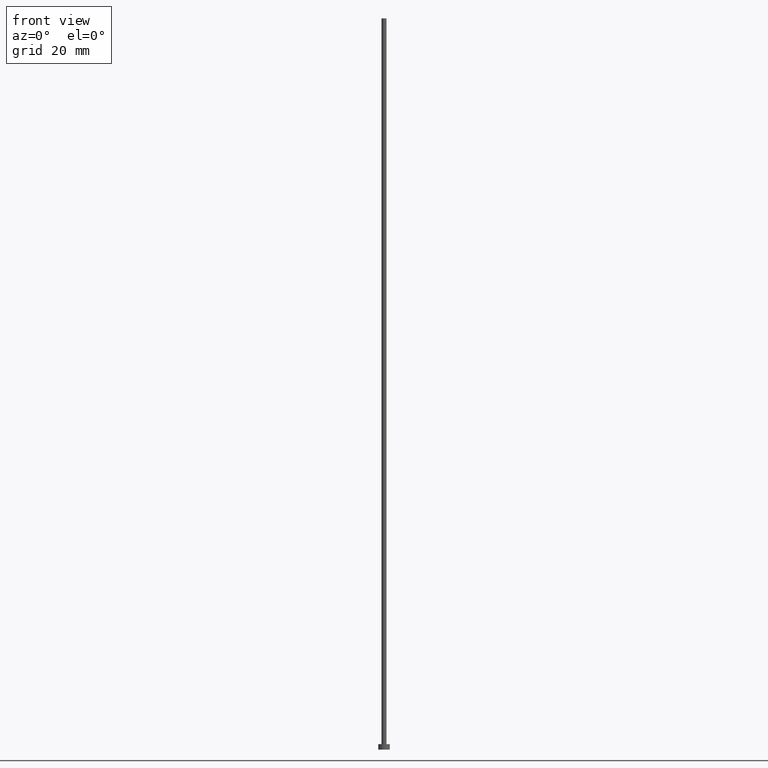
[diagram: clean part render]
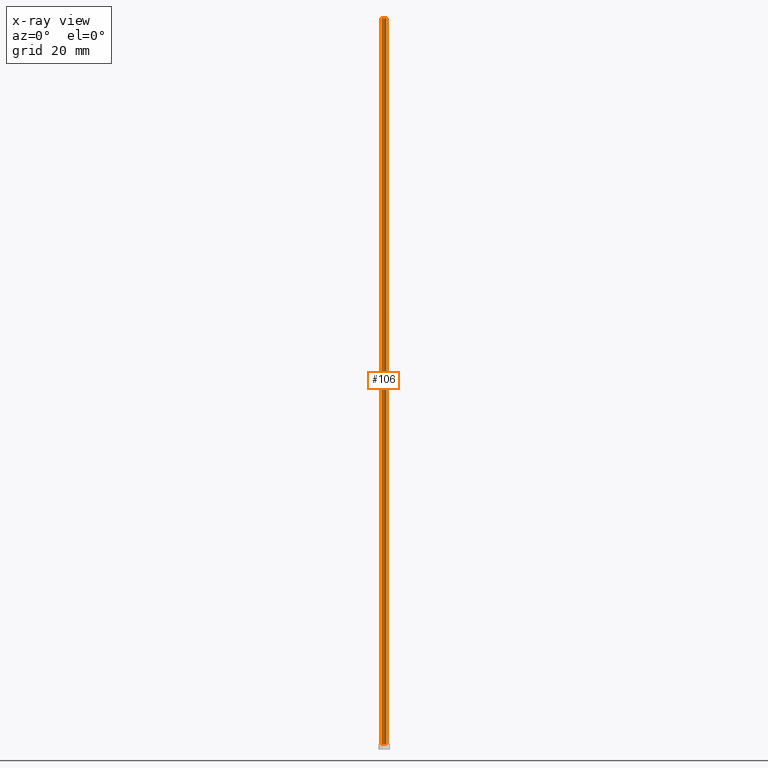
[diagram: x-ray — body ghosted, one internal face saturated and labeled with its STEP entity id]
A machine part, front view, then the same camera in x-ray: the body is ghosted and one INTERNAL B-rep face — a face not visible from any outside direction — is saturated and labeled: STEP entity #106.
In plain terms, the highlighted cylindrical surface (edge-blend (fillet) strip) has radius 0.55 mm, axis along (-0, -0, -1).
Its self-contained STEP definition (entity closure, byte-faithful):
#1 = EDGE_CURVE ( 'NONE', #11, #152, #46, .T. ) ;
#11 = VERTEX_POINT ( 'NONE', #234 ) ;
#13 = FACE_OUTER_BOUND ( 'NONE', #147, .T. ) ;
#21 = ORIENTED_EDGE ( 'NONE', *, *, #69, .T. ) ;
#35 = VECTOR ( 'NONE', #196, 1000.000000000000000 ) ;
#38 = DIRECTION ( 'NONE',  ( -0.000000000000000000, -0.000000000000000000, -1.000000000000000000 ) ) ;
#39 = DIRECTION ( 'NONE',  ( 0.000000000000000000, 0.000000000000000000, 1.000000000000000000 ) ) ;
#42 = CIRCLE ( 'NONE', #192, 0.5500000000000000444 ) ;
#46 = LINE ( 'NONE', #130, #35 ) ;
#56 = EDGE_CURVE ( 'NONE', #60, #124, #208, .T. ) ;
#57 = CARTESIAN_POINT ( 'NONE',  ( 0.000000000000000000, 0.000000000000000000, 160.0000000000000284 ) ) ;
#60 = VERTEX_POINT ( 'NONE', #250 ) ;
#69 = EDGE_CURVE ( 'NONE', #124, #152, #241, .T. ) ;
#70 = ORIENTED_EDGE ( 'NONE', *, *, #151, .F. ) ;
#71 = CARTESIAN_POINT ( 'NONE',  ( 0.5500000000000000444, 6.735557395310442516E-17, 1.199999999999999956 ) ) ;
#73 = DIRECTION ( 'NONE',  ( 1.000000000000000000, 0.000000000000000000, 0.000000000000000000 ) ) ;
#74 = DIRECTION ( 'NONE',  ( -0.000000000000000000, -0.000000000000000000, -1.000000000000000000 ) ) ;
#79 = ORIENTED_EDGE ( 'NONE', *, *, #56, .T. ) ;
#87 = AXIS2_PLACEMENT_3D ( 'NONE', #57, #74, #118 ) ;
#106 = ADVANCED_FACE ( 'NONE', ( #13 ), #138, .T. ) ;
#114 = VECTOR ( 'NONE', #38, 1000.000000000000000 ) ;
#117 = DIRECTION ( 'NONE',  ( 0.000000000000000000, 0.000000000000000000, 1.000000000000000000 ) ) ;
#118 = DIRECTION ( 'NONE',  ( -1.000000000000000000, 0.000000000000000000, 0.000000000000000000 ) ) ;
#122 = DIRECTION ( 'NONE',  ( 1.000000000000000000, 0.000000000000000000, 0.000000000000000000 ) ) ;
#124 = VERTEX_POINT ( 'NONE', #71 ) ;
#130 = CARTESIAN_POINT ( 'NONE',  ( -0.5500000000000000444, 0.000000000000000000, 160.0000000000000284 ) ) ;
#138 = CYLINDRICAL_SURFACE ( 'NONE', #87, 0.5500000000000000444 ) ;
#147 = EDGE_LOOP ( 'NONE', ( #70, #79, #21, #178 ) ) ;
#151 = EDGE_CURVE ( 'NONE', #60, #11, #42, .T. ) ;
#152 = VERTEX_POINT ( 'NONE', #162 ) ;
#162 = CARTESIAN_POINT ( 'NONE',  ( -0.5500000000000000444, 0.000000000000000000, 1.199999999999999956 ) ) ;
#178 = ORIENTED_EDGE ( 'NONE', *, *, #1, .F. ) ;
#192 = AXIS2_PLACEMENT_3D ( 'NONE', #209, #39, #122 ) ;
#194 = CARTESIAN_POINT ( 'NONE',  ( 0.000000000000000000, 0.000000000000000000, 1.199999999999999956 ) ) ;
#196 = DIRECTION ( 'NONE',  ( -0.000000000000000000, -0.000000000000000000, -1.000000000000000000 ) ) ;
#208 = LINE ( 'NONE', #227, #114 ) ;
#209 = CARTESIAN_POINT ( 'NONE',  ( 0.000000000000000000, 0.000000000000000000, 160.0000000000000284 ) ) ;
#227 = CARTESIAN_POINT ( 'NONE',  ( 0.5500000000000000444, 6.735557395310442516E-17, 160.0000000000000284 ) ) ;
#234 = CARTESIAN_POINT ( 'NONE',  ( -0.5500000000000000444, 0.000000000000000000, 160.0000000000000284 ) ) ;
#241 = CIRCLE ( 'NONE', #247, 0.5500000000000000444 ) ;
#247 = AXIS2_PLACEMENT_3D ( 'NONE', #194, #117, #73 ) ;
#250 = CARTESIAN_POINT ( 'NONE',  ( 0.5500000000000000444, 6.735557395310442516E-17, 160.0000000000000284 ) ) ;